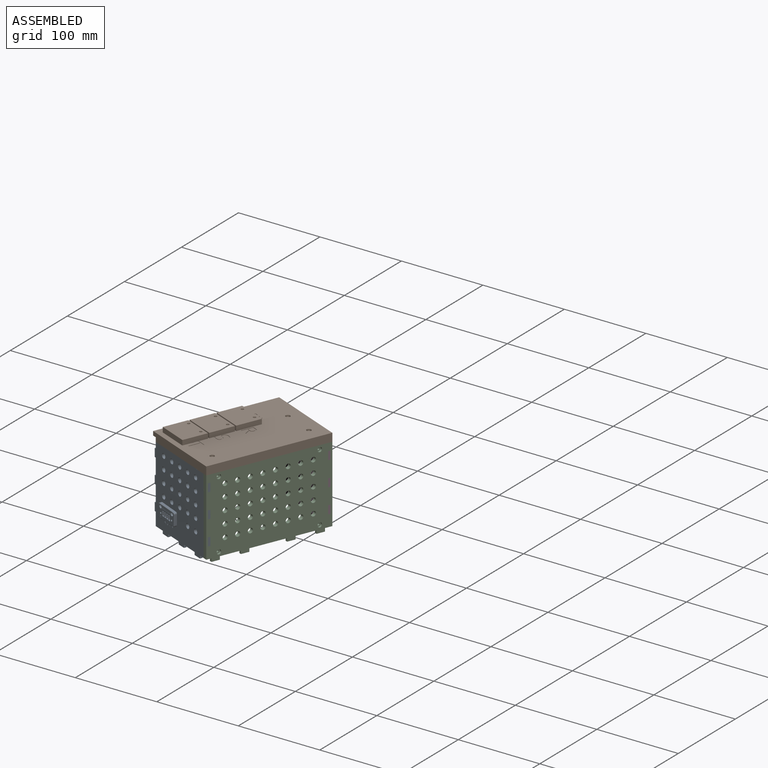
[diagram: assembled view]
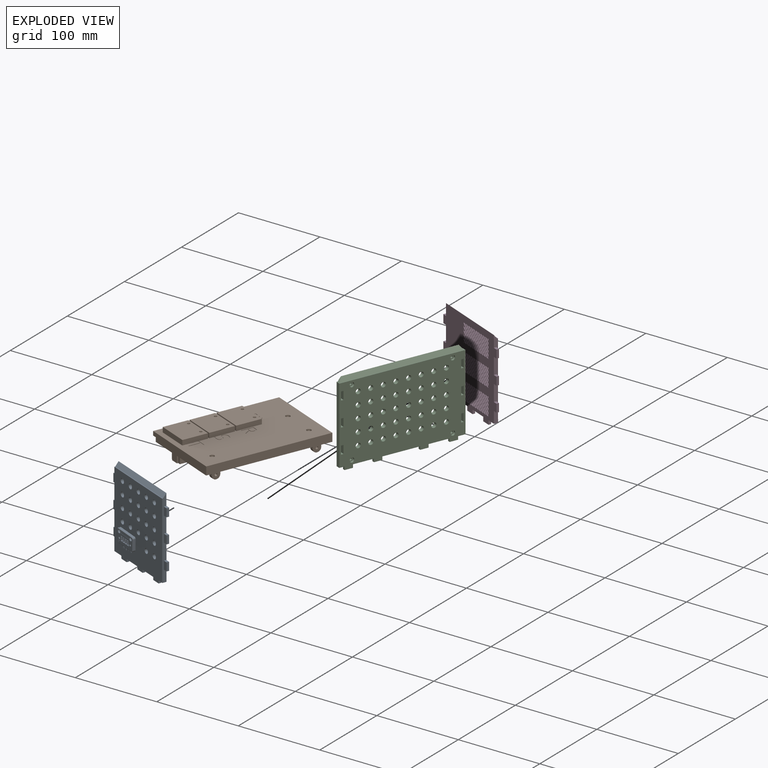
[diagram: exploded view]
GUIDED TOUR — MATED ASSEMBLY WITH SUBASSEMBLIES (Onshape document c2169f54061de33ea93a90dd, AutoMate assembly c2169f54061de33ea93a90dd_6a7d9849bef87e64bdcc8d37_483be681c56e90cc76125730_default)

This assembly has 8 component occurrences arranged in 4 top-level units: 2 individual components plus 2 subassemblies (S0, S1). The tour has two levels: first the top level, where each subassembly is treated as one rigid unit; then each subassembly is toured internally in its own section (nesting deeper than one subassembly level is flattened into its subassembly's section).

Components are labeled P0..P7 across the whole record; subassembly units are labeled S0..S1. A mate is a constraint between two units; its type names the relative motion it leaves free:
  PLANAR — leaves sliding in the plane through the listed point (normal = the listed direction) and rotation about that normal free.
Axis/direction vectors are unit vectors and 'through' points are millimeter coordinates, both in the assembly's world frame.

TOP-LEVEL MATES (between units; each subassembly's internal mates are listed in its own section)
  1. PLANAR "Planar 3": S0 <-> S1, direction (-0.302, -0.720, 0.625) through (-228.48, -171.13, 92.83) mm
  2. PLANAR "Planar 2": P4 <-> S1, direction (0.301, 0.720, 0.625) through (-172.90, -38.29, 92.87) mm
  3. PLANAR "Planar 1": P3 <-> S1, direction (0.720, -0.301, 0.625) through (-117.67, -139.45, 95.41) mm

TOP-LEVEL ASSEMBLY ORDER
  1. S1 — the base component [order verified]
  2. S0 [order verified]
  3. P3 [order verified]
  4. P4 [order verified]
(P3, P4 verified with a relaxed clearance tolerance: the source model stores slight part interference there.)
Order-tag legend:
  [order verified] — this step's position reverses a verified removal order: the component was checked to insert without passing through the ones already placed.

Of the 8 component occurrences, 5 carry the full construction recipe — the FeatureScript program that regenerates the part's solid from scratch; the rest are supplied as boundary geometry only. Each toured unit is shown spotlighted twice — assembled, then exploded with a leader line back to its socket (green = recipe-attached component, orange = geometry-only, blue = subassembly unit; the rest desaturated gray).
NOTE — this tour is split across 2 documents so each fits a 32k-token context. This is document 1: the component sections continue in the remaining 1 document, each repeating the header above.
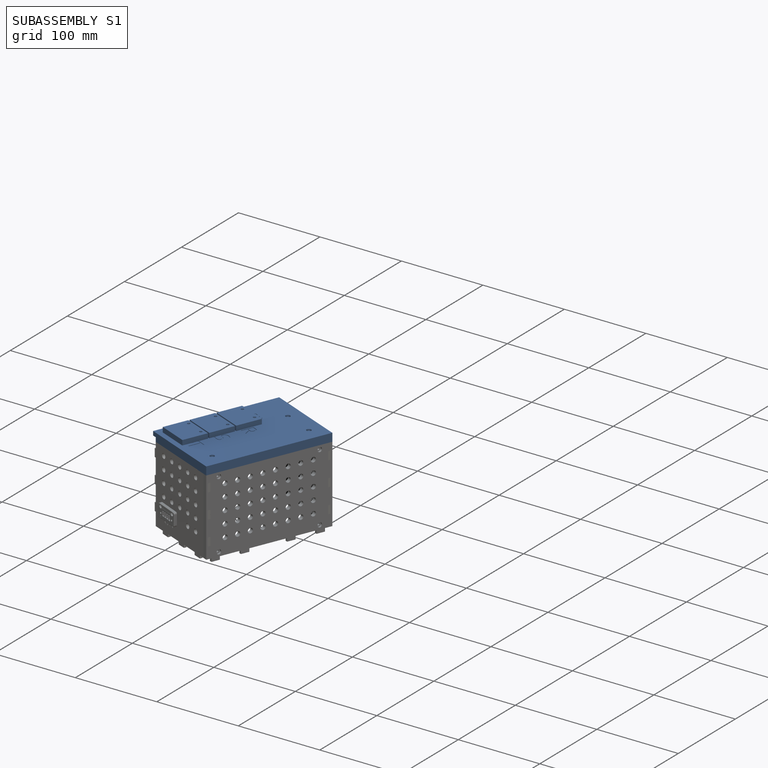
[diagram: subassembly S1 — assembled]
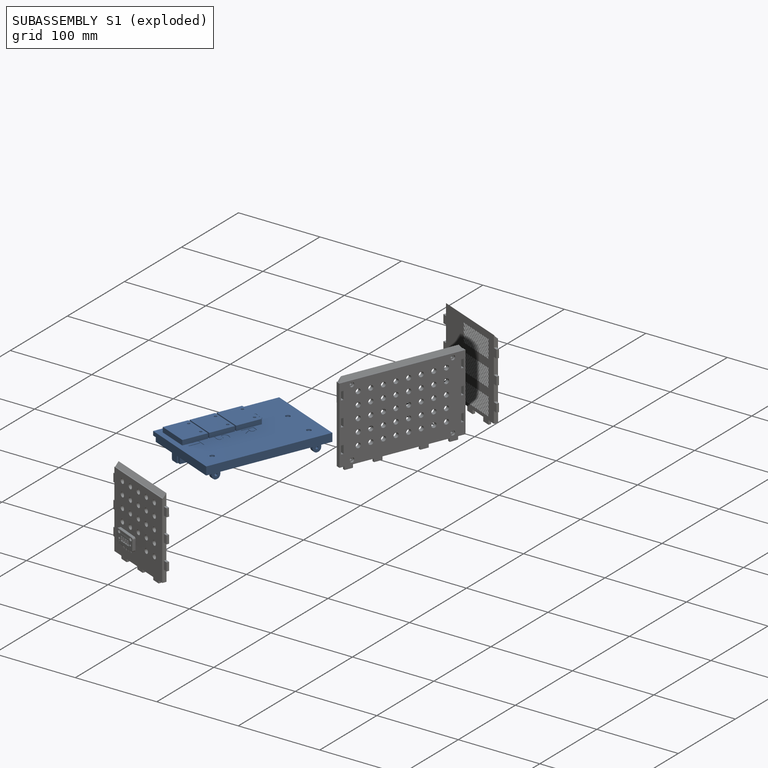
[diagram: subassembly S1 — exploded]
SUBASSEMBLY S1 — 4 components (P1, P2, P6, P7), of which 4 recipe-attached; toured below.
Held by: PLANAR mate "Planar 3" to S0; PLANAR mate "Planar 2" to P4; PLANAR mate "Planar 1" to P3.
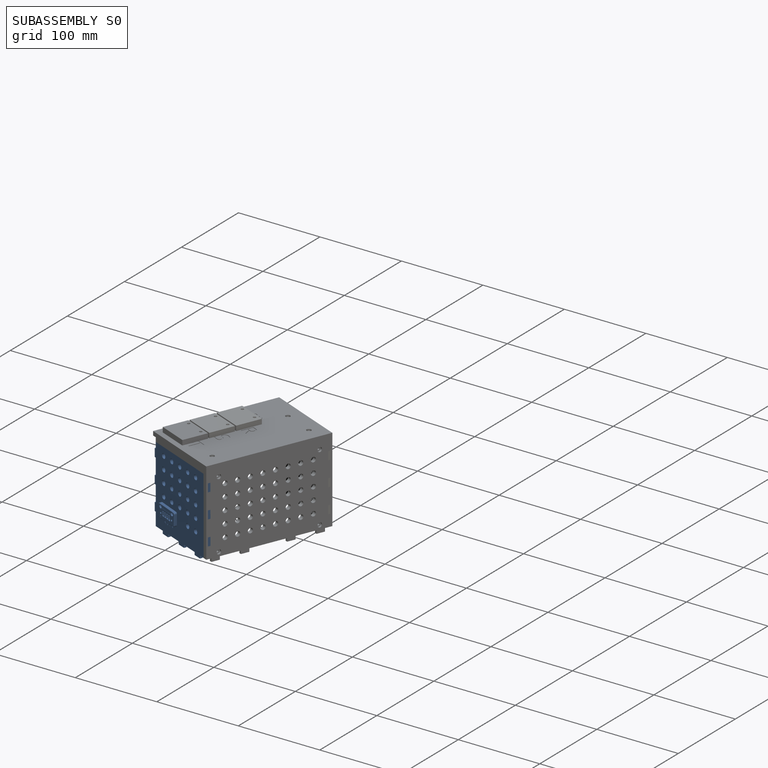
[diagram: subassembly S0 — assembled]
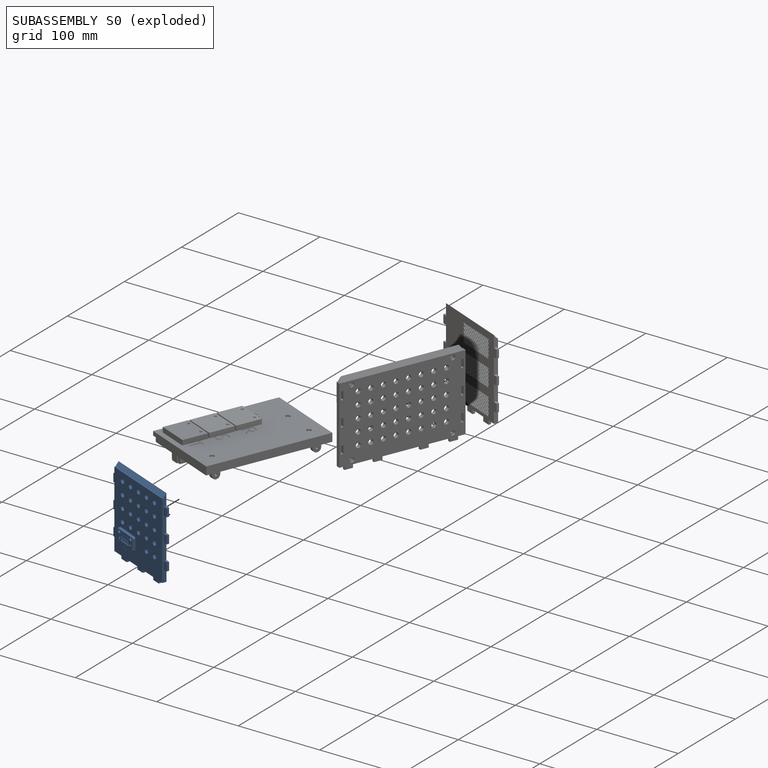
[diagram: subassembly S0 — exploded]
SUBASSEMBLY S0 — 2 components (P0, P5), of which 0 recipe-attached; toured below.
Held by: PLANAR mate "Planar 3" to S1.
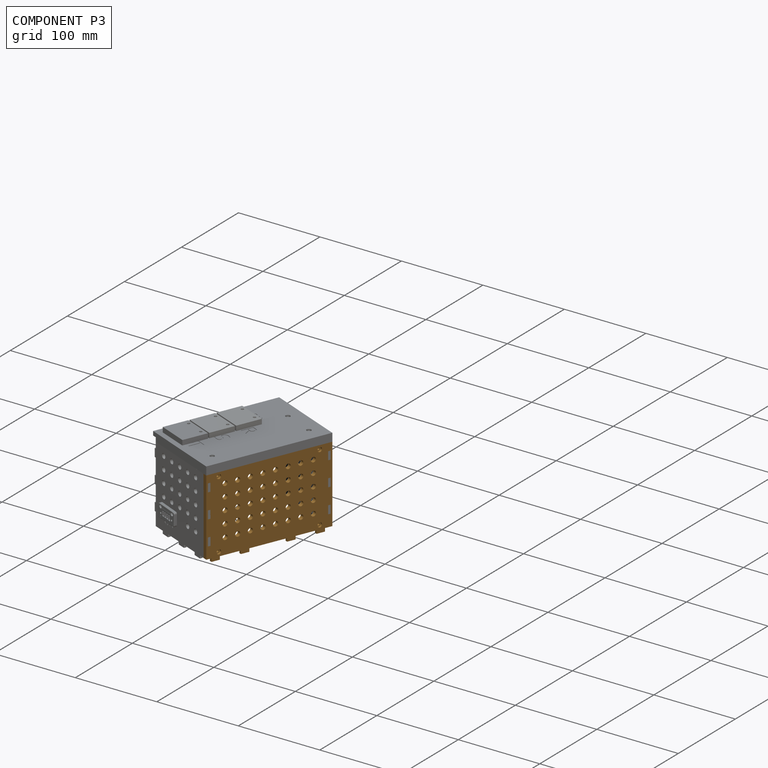
[diagram: component P3 — assembled]
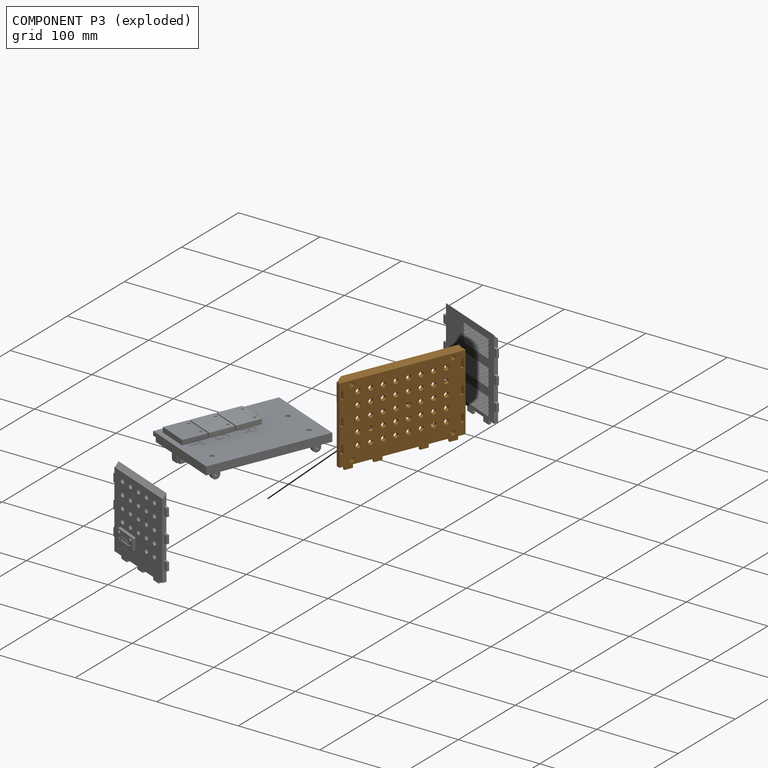
[diagram: component P3 — exploded]
COMPONENT P3 — geometry summary (no construction recipe available for this part):
  bounding box: 150.0 x 103.5 x 5.0 mm
  B-rep topology: 1 solid, 101 faces, 570 edges
  volume: 65315 mm^3 (84% of its bounding box)
  symmetry: mirror-symmetric across its x mid-plane
Held by: PLANAR mate "Planar 1" to P1.
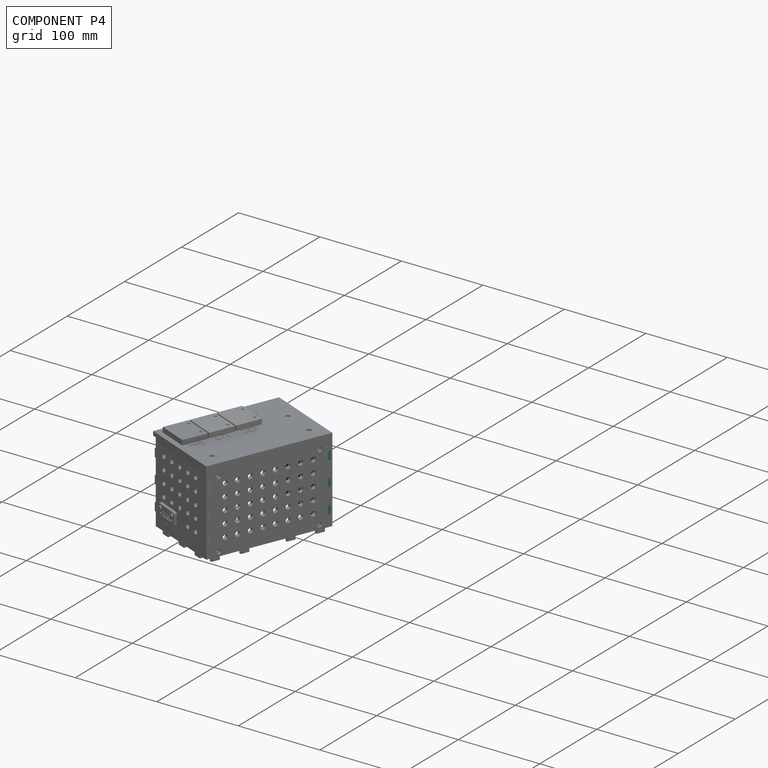
[diagram: component P4 — assembled]
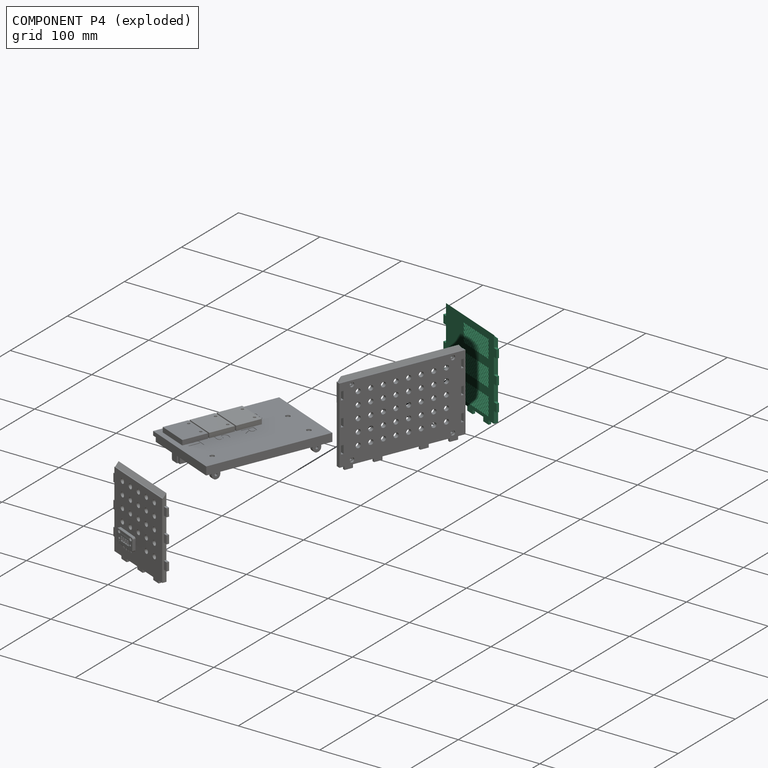
[diagram: component P4 — exploded]
COMPONENT P4 — recipe-attached (CADFS 00138785, mesh-verified: the recipe's output STEP matches this component's geometry to below the mesh-comparison resolution (tessellation chordal tolerance ~0.216 mm)).
Held by: PLANAR mate "Planar 2" to P1.
Construction recipe (FeatureScript — the CAD program that rebuilds this solid; sketch coordinates are in the units given by the * unit suffixes, e.g. mm):

FeatureScript 1511;
import(path : "onshape/std/geometry.fs", version : "1511.0");
import(path : "onshape/std/common.fs", version : "1511.0");
const mm = millimeter;
const VERTEX = EntityType.VERTEX;
const EDGE = EntityType.EDGE;
const FACE = EntityType.FACE;
const BODY = EntityType.BODY;
function v(x, y){return vector(x, y);}
function OD(order){return orderDisambiguation(order);}
function OSD(set){return originalSetDisambiguation(set);}
function TD(topology){return topologyDisambiguation(topology);}
function TDD(query){return trueDependencyDisambiguation(query);}
function sQuery(a, b, c) {return sketchEntityQuery(a, b, c);}

annotation { "Feature Type Name" : "Feature", "Feature Type Description" : "" }
export const myFeature = defineFeature(function(context is Context, id is Id, definition is map)
    precondition{}
    {
        {
            var Q0;
            Q0=qCreatedBy(makeId("Top.planeOp"),FACE);
            var sketch = newSketch(context, id + "F0", { "sketchPlane" : qUnion([Q0])});
            skLineSegment(sketch, "E0.bottom", {"start": v(45, 49.25) * mm, "end": v(-45, 49.25) * mm});
            skLineSegment(sketch, "E0.top", {"start": v(45, -49.25) * mm, "end": v(-45, -49.25) * mm});
            skLineSegment(sketch, "E0.left", {"start": v(45, 49.25) * mm, "end": v(45, -49.25) * mm});
            skLineSegment(sketch, "E0.right", {"start": v(-45, 49.25) * mm, "end": v(-45, -49.25) * mm});
            skPoint(sketch, "E0.middle", {"position": v(0, 0) * mm});
            skSolve(sketch);
        }
        {
            var Q0;
            Q0 = qSketchRegion(id + "F0", true);
            extrude(context, id + "F1", {"entities" : qUnion([Q0]), "depth" : 5 * mm});
        }
        {
            var Q0;
            Q0=makeQuery(id+"F1.opExtrude","CAP_FACE",FACE,{"disambiguationData":[OSD([sQuery(id+"F0.wireOp",EDGE,"E0.bottom"),sQuery(id+"F0.wireOp",EDGE,"E0.top"),sQuery(id+"F0.wireOp",EDGE,"E0.left"),sQuery(id+"F0.wireOp",EDGE,"E0.right")])],"isStart":false});
            var sketch = newSketch(context, id + "F2", { "sketchPlane" : qUnion([Q0])});
            skLineSegment(sketch, "E1.bottom", {"start": v(-35, 40.75) * mm, "end": v(12, 40.75) * mm});
            skLineSegment(sketch, "E1.top", {"start": v(-35, 18.75) * mm, "end": v(12, 18.75) * mm});
            skLineSegment(sketch, "E1.left", {"start": v(-35, 40.75) * mm, "end": v(-35, 18.75) * mm});
            skLineSegment(sketch, "E1.right", {"start": v(12, 40.75) * mm, "end": v(12, 18.75) * mm});
            skLineSegment(sketch, "E2.bottom", {"start": v(-35, 8.75) * mm, "end": v(12, 8.75) * mm});
            skLineSegment(sketch, "E2.top", {"start": v(-35, -13.25) * mm, "end": v(12, -13.25) * mm});
            skLineSegment(sketch, "E2.left", {"start": v(-35, 8.75) * mm, "end": v(-35, -13.25) * mm});
            skLineSegment(sketch, "E2.right", {"start": v(12, 8.75) * mm, "end": v(12, -13.25) * mm});
            skLineSegment(sketch, "E3.bottom", {"start": v(-35, -23.25) * mm, "end": v(12, -23.25) * mm});
            skLineSegment(sketch, "E3.top", {"start": v(-35, -45.25) * mm, "end": v(12, -45.25) * mm});
            skLineSegment(sketch, "E3.left", {"start": v(-35, -23.25) * mm, "end": v(-35, -45.25) * mm});
            skLineSegment(sketch, "E3.right", {"start": v(12, -23.25) * mm, "end": v(12, -45.25) * mm});
            skSolve(sketch);
        }
        {
            var Q0;
            Q0=makeQuery(id+"F1.opExtrude","SWEPT_FACE",FACE,{"disambiguationData":[OSD([sQuery(id+"F0.wireOp",EDGE,"E0.right")])]});
            var sketch = newSketch(context, id + "F3", { "sketchPlane" : qUnion([Q0])});
            skLineSegment(sketch, "E4.bottom", {"start": v(-35, 0) * mm, "end": v(-25, 0) * mm});
            skLineSegment(sketch, "E4.top", {"start": v(-35, 3) * mm, "end": v(-25, 3) * mm});
            skLineSegment(sketch, "E4.left", {"start": v(-35, 0) * mm, "end": v(-35, 3) * mm});
            skLineSegment(sketch, "E4.right", {"start": v(-25, 0) * mm, "end": v(-25, 3) * mm});
            skLineSegment(sketch, "E5.bottom", {"start": v(-5, 0) * mm, "end": v(5, 0) * mm});
            skLineSegment(sketch, "E5.top", {"start": v(-5, 3) * mm, "end": v(5, 3) * mm});
            skLineSegment(sketch, "E5.left", {"start": v(-5, 0) * mm, "end": v(-5, 3) * mm});
            skLineSegment(sketch, "E5.right", {"start": v(5, 0) * mm, "end": v(5, 3) * mm});
            skLineSegment(sketch, "E6.bottom", {"start": v(25, 0) * mm, "end": v(35, 0) * mm});
            skLineSegment(sketch, "E6.top", {"start": v(25, 3) * mm, "end": v(35, 3) * mm});
            skLineSegment(sketch, "E6.left", {"start": v(25, 0) * mm, "end": v(25, 3) * mm});
            skLineSegment(sketch, "E6.right", {"start": v(35, 0) * mm, "end": v(35, 3) * mm});
            skSolve(sketch);
        }
        {
            var Q0;
            Q0 = qSketchRegion(id + "F3", true);
            extrude(context, id + "F4", {"entities" : qUnion([Q0]), "operationType" : NewBodyOperationType.ADD, "depth" : 5 * mm});
        }
        {
            var Q0;
            Q0=makeQuery(id+"F1.opExtrude","SWEPT_FACE",FACE,{"disambiguationData":[OSD([sQuery(id+"F0.wireOp",EDGE,"E0.left")])]});
            var sketch = newSketch(context, id + "F5", { "sketchPlane" : qUnion([Q0])});
            skLineSegment(sketch, "E7.bottom", {"start": v(-35, 3) * mm, "end": v(-25, 3) * mm});
            skLineSegment(sketch, "E7.top", {"start": v(-35, 0) * mm, "end": v(-25, 0) * mm});
            skLineSegment(sketch, "E7.left", {"start": v(-35, 3) * mm, "end": v(-35, 0) * mm});
            skLineSegment(sketch, "E7.right", {"start": v(-25, 3) * mm, "end": v(-25, 0) * mm});
            skLineSegment(sketch, "E8.bottom", {"start": v(-5, 3) * mm, "end": v(5, 3) * mm});
            skLineSegment(sketch, "E8.top", {"start": v(-5, 0) * mm, "end": v(5, 0) * mm});
            skLineSegment(sketch, "E8.left", {"start": v(-5, 3) * mm, "end": v(-5, 0) * mm});
            skLineSegment(sketch, "E8.right", {"start": v(5, 3) * mm, "end": v(5, 0) * mm});
            skLineSegment(sketch, "E9.bottom", {"start": v(25, 3) * mm, "end": v(35, 3) * mm});
            skLineSegment(sketch, "E9.top", {"start": v(25, 0) * mm, "end": v(35, 0) * mm});
            skLineSegment(sketch, "E9.left", {"start": v(25, 3) * mm, "end": v(25, 0) * mm});
            skLineSegment(sketch, "E9.right", {"start": v(35, 3) * mm, "end": v(35, 0) * mm});
            skSolve(sketch);
        }
        {
            var Q0;
            Q0 = qSketchRegion(id + "F5", true);
            extrude(context, id + "F6", {"entities" : qUnion([Q0]), "operationType" : NewBodyOperationType.ADD, "depth" : 5 * mm});
        }
        {
            var Q0;
            Q0=makeQuery(id+"F1.opExtrude","SWEPT_FACE",FACE,{"disambiguationData":[OSD([sQuery(id+"F0.wireOp",EDGE,"E0.top")])]});
            var sketch = newSketch(context, id + "F7", { "sketchPlane" : qUnion([Q0])});
            skLineSegment(sketch, "E10.bottom", {"start": v(-35, 0) * mm, "end": v(-25, 0) * mm});
            skLineSegment(sketch, "E10.top", {"start": v(-35, 3) * mm, "end": v(-25, 3) * mm});
            skLineSegment(sketch, "E10.left", {"start": v(-35, 0) * mm, "end": v(-35, 3) * mm});
            skLineSegment(sketch, "E10.right", {"start": v(-25, 0) * mm, "end": v(-25, 3) * mm});
            skLineSegment(sketch, "E11.bottom", {"start": v(-5, 0) * mm, "end": v(5, 0) * mm});
            skLineSegment(sketch, "E11.top", {"start": v(-5, 3) * mm, "end": v(5, 3) * mm});
            skLineSegment(sketch, "E11.left", {"start": v(-5, 0) * mm, "end": v(-5, 3) * mm});
            skLineSegment(sketch, "E11.right", {"start": v(5, 0) * mm, "end": v(5, 3) * mm});
            skLineSegment(sketch, "E12.bottom", {"start": v(25, 0) * mm, "end": v(35, 0) * mm});
            skLineSegment(sketch, "E12.top", {"start": v(25, 3) * mm, "end": v(35, 3) * mm});
            skLineSegment(sketch, "E12.left", {"start": v(25, 0) * mm, "end": v(25, 3) * mm});
            skLineSegment(sketch, "E12.right", {"start": v(35, 0) * mm, "end": v(35, 3) * mm});
            skSolve(sketch);
        }
        {
            var Q0;
            Q0 = qSketchRegion(id + "F7", true);
            extrude(context, id + "F8", {"entities" : qUnion([Q0]), "operationType" : NewBodyOperationType.ADD, "depth" : 5 * mm});
        }
        {
            var Q0;
            Q0=makeQuery(id+"F2.imprint","IMPRINT",FACE,{"disambiguationData":[TD([[makeQuery(id+"F2.imprint","IMPRINT",EDGE,{"derivedFrom":sQuery(id+"F2.wireOp",EDGE,"E1.bottom")}),-1.0]])]});
            var sketch = newSketch(context, id + "F9", { "sketchPlane" : qUnion([Q0])});
            skLineSegment(sketch, "E13", {"start": v(-35, 18.75) * mm, "end": v(-13, 40.75) * mm});
            skLineSegment(sketch, "E14", {"start": v(-13, 40.75) * mm, "end": v(-10, 40.75) * mm});
            skLineSegment(sketch, "E15", {"start": v(-10, 40.75) * mm, "end": v(-32, 18.75) * mm});
            skLineSegment(sketch, "E16", {"start": v(-32, 18.75) * mm, "end": v(-35, 18.75) * mm});
            skLineSegment(sketch, "E17.1.0.0", {"start": v(-27.5, 18.75) * mm, "end": v(-30.5, 18.75) * mm});
            skLineSegment(sketch, "E17.1.0.1", {"start": v(-5.5, 40.75) * mm, "end": v(-27.5, 18.75) * mm});
            skLineSegment(sketch, "E17.1.0.2", {"start": v(-8.5, 40.75) * mm, "end": v(-5.5, 40.75) * mm});
            skLineSegment(sketch, "E17.1.0.3", {"start": v(-30.5, 18.75) * mm, "end": v(-8.5, 40.75) * mm});
            skLineSegment(sketch, "E17.2.0.0", {"start": v(-23, 18.75) * mm, "end": v(-26, 18.75) * mm});
            skLineSegment(sketch, "E17.2.0.1", {"start": v(-1, 40.75) * mm, "end": v(-23, 18.75) * mm});
            skLineSegment(sketch, "E17.2.0.2", {"start": v(-4, 40.75) * mm, "end": v(-1, 40.75) * mm});
            skLineSegment(sketch, "E17.2.0.3", {"start": v(-26, 18.75) * mm, "end": v(-4, 40.75) * mm});
            skLineSegment(sketch, "E17.3.0.0", {"start": v(-18.5, 18.75) * mm, "end": v(-21.5, 18.75) * mm});
            skLineSegment(sketch, "E17.3.0.1", {"start": v(3.5, 40.75) * mm, "end": v(-18.5, 18.75) * mm});
            skLineSegment(sketch, "E17.3.0.2", {"start": v(0.5, 40.75) * mm, "end": v(3.5, 40.75) * mm});
            skLineSegment(sketch, "E17.3.0.3", {"start": v(-21.5, 18.75) * mm, "end": v(0.5, 40.75) * mm});
            skLineSegment(sketch, "E17.4.0.0", {"start": v(-14, 18.75) * mm, "end": v(-17, 18.75) * mm});
            skLineSegment(sketch, "E17.4.0.1", {"start": v(8, 40.75) * mm, "end": v(-14, 18.75) * mm});
            skLineSegment(sketch, "E17.4.0.2", {"start": v(5, 40.75) * mm, "end": v(8, 40.75) * mm});
            skLineSegment(sketch, "E17.4.0.3", {"start": v(-17, 18.75) * mm, "end": v(5, 40.75) * mm});
            skLineSegment(sketch, "E17.5.0.0", {"start": v(-9.5, 18.75) * mm, "end": v(-12.5, 18.75) * mm});
            skLineSegment(sketch, "E17.5.0.1", {"start": v(12, 40.25) * mm, "end": v(-9.5, 18.75) * mm});
            skLineSegment(sketch, "E17.5.0.2", {"start": v(9.5, 40.75) * mm, "end": v(12, 40.75) * mm});
            skLineSegment(sketch, "E17.5.0.3", {"start": v(-12.5, 18.75) * mm, "end": v(9.5, 40.75) * mm});
            skLineSegment(sketch, "E17.6.0.0", {"start": v(-5, 18.75) * mm, "end": v(-8, 18.75) * mm});
            skLineSegment(sketch, "E17.6.0.1", {"start": v(12, 35.75) * mm, "end": v(-5, 18.75) * mm});
            skLineSegment(sketch, "E17.6.0.3", {"start": v(-8, 18.75) * mm, "end": v(12, 38.75) * mm});
            skLineSegment(sketch, "E17.7.0.0", {"start": v(-0.5, 18.75) * mm, "end": v(-3.5, 18.75) * mm});
            skLineSegment(sketch, "E17.7.0.1", {"start": v(12, 31.25) * mm, "end": v(-0.5, 18.75) * mm});
            skLineSegment(sketch, "E17.7.0.3", {"start": v(-3.5, 18.75) * mm, "end": v(12, 34.25) * mm});
            skLineSegment(sketch, "E17.8.0.0", {"start": v(4, 18.75) * mm, "end": v(1, 18.75) * mm});
            skLineSegment(sketch, "E17.8.0.1", {"start": v(12, 26.75) * mm, "end": v(4, 18.75) * mm});
            skLineSegment(sketch, "E17.8.0.3", {"start": v(1, 18.75) * mm, "end": v(12, 29.75) * mm});
            skLineSegment(sketch, "E17.9.0.0", {"start": v(8.5, 18.75) * mm, "end": v(5.5, 18.75) * mm});
            skLineSegment(sketch, "E17.9.0.1", {"start": v(12, 22.25) * mm, "end": v(8.5, 18.75) * mm});
            skLineSegment(sketch, "E17.9.0.3", {"start": v(5.5, 18.75) * mm, "end": v(12, 25.25) * mm});
            skLineSegment(sketch, "E17.10.0.0", {"start": v(12, 18.75) * mm, "end": v(10, 18.75) * mm});
            skLineSegment(sketch, "E17.10.0.3", {"start": v(10, 18.75) * mm, "end": v(12, 20.75) * mm});
            skLineSegment(sketch, "E17.direction1", {"start": v(-35, 18.75) * mm, "end": v(-30.5, 18.75) * mm, "construction": true});
            skLineSegment(sketch, "E18.left", {"start": v(-35, 20.25) * mm, "end": v(-35, 23.25) * mm});
            skLineSegment(sketch, "E18.right", {"start": v(12, 18.75) * mm, "end": v(12, 20.75) * mm});
            skLineSegment(sketch, "E19.1.0.0", {"start": v(-17.5, 40.75) * mm, "end": v(-14.5, 40.75) * mm});
            skLineSegment(sketch, "E19.1.0.1", {"start": v(-14.5, 40.75) * mm, "end": v(-35, 20.25) * mm});
            skLineSegment(sketch, "E19.1.0.2", {"start": v(-35, 23.25) * mm, "end": v(-17.5, 40.75) * mm});
            skLineSegment(sketch, "E19.2.0.0", {"start": v(-22, 40.75) * mm, "end": v(-19, 40.75) * mm});
            skLineSegment(sketch, "E19.2.0.1", {"start": v(-19, 40.75) * mm, "end": v(-35, 24.75) * mm});
            skLineSegment(sketch, "E19.2.0.2", {"start": v(-35, 27.75) * mm, "end": v(-22, 40.75) * mm});
            skLineSegment(sketch, "E19.3.0.0", {"start": v(-26.5, 40.75) * mm, "end": v(-23.5, 40.75) * mm});
            skLineSegment(sketch, "E19.3.0.1", {"start": v(-23.5, 40.75) * mm, "end": v(-35, 29.25) * mm});
            skLineSegment(sketch, "E19.3.0.2", {"start": v(-35, 32.25) * mm, "end": v(-26.5, 40.75) * mm});
            skLineSegment(sketch, "E19.4.0.0", {"start": v(-31, 40.75) * mm, "end": v(-28, 40.75) * mm});
            skLineSegment(sketch, "E19.4.0.1", {"start": v(-28, 40.75) * mm, "end": v(-35, 33.75) * mm});
            skLineSegment(sketch, "E19.4.0.2", {"start": v(-35, 36.75) * mm, "end": v(-31, 40.75) * mm});
            skLineSegment(sketch, "E19.5.0.0", {"start": v(-35, 40.75) * mm, "end": v(-32.5, 40.75) * mm});
            skLineSegment(sketch, "E19.5.0.1", {"start": v(-32.5, 40.75) * mm, "end": v(-35, 38.25) * mm});
            skLineSegment(sketch, "E19.direction1", {"start": v(-35, 18.75) * mm, "end": v(-39.5, 18.75) * mm, "construction": true});
            skLineSegment(sketch, "E20.trimOffspring", {"start": v(-35, 24.75) * mm, "end": v(-35, 27.75) * mm});
            skLineSegment(sketch, "E21.trimOffspring", {"start": v(-35, 29.25) * mm, "end": v(-35, 32.25) * mm});
            skLineSegment(sketch, "E22.trimOffspring", {"start": v(-35, 33.75) * mm, "end": v(-35, 36.75) * mm});
            skLineSegment(sketch, "E23.trimOffspring", {"start": v(-35, 38.25) * mm, "end": v(-35, 40.75) * mm});
            skLineSegment(sketch, "E24.trimOffspring", {"start": v(12, 40.25) * mm, "end": v(12, 40.75) * mm});
            skLineSegment(sketch, "E25.trimOffspring", {"start": v(12, 35.75) * mm, "end": v(12, 38.75) * mm});
            skLineSegment(sketch, "E26.trimOffspring", {"start": v(12, 31.25) * mm, "end": v(12, 34.25) * mm});
            skLineSegment(sketch, "E27.trimOffspring", {"start": v(12, 26.75) * mm, "end": v(12, 29.75) * mm});
            skLineSegment(sketch, "E28.trimOffspring", {"start": v(12, 22.25) * mm, "end": v(12, 25.25) * mm});
            skLineSegment(sketch, "E29.0.1.0", {"start": v(-35, -4.25) * mm, "end": v(-22, 8.75) * mm});
            skLineSegment(sketch, "E29.0.1.1", {"start": v(-3.5, -13.25) * mm, "end": v(12, 2.25) * mm});
            skLineSegment(sketch, "E29.0.1.2", {"start": v(-30.5, -13.25) * mm, "end": v(-8.5, 8.75) * mm});
            skLineSegment(sketch, "E29.0.1.3", {"start": v(-17, -13.25) * mm, "end": v(5, 8.75) * mm});
            skLineSegment(sketch, "E29.0.1.4", {"start": v(-23.5, 8.75) * mm, "end": v(-35, -2.75) * mm});
            skLineSegment(sketch, "E29.0.1.5", {"start": v(12, 8.25) * mm, "end": v(-9.5, -13.25) * mm});
            skLineSegment(sketch, "E29.0.1.6", {"start": v(12, -0.75) * mm, "end": v(-0.5, -13.25) * mm});
            skLineSegment(sketch, "E29.0.1.7", {"start": v(-8, -13.25) * mm, "end": v(12, 6.75) * mm});
            skLineSegment(sketch, "E29.0.1.8", {"start": v(-14.5, 8.75) * mm, "end": v(-35, -11.75) * mm});
            skLineSegment(sketch, "E29.0.1.9", {"start": v(-26, -13.25) * mm, "end": v(-4, 8.75) * mm});
            skLineSegment(sketch, "E29.0.1.10", {"start": v(-19, 8.75) * mm, "end": v(-35, -7.25) * mm});
            skLineSegment(sketch, "E29.0.1.11", {"start": v(5.5, -13.25) * mm, "end": v(12, -6.75) * mm});
            skLineSegment(sketch, "E29.0.1.12", {"start": v(-10, 8.75) * mm, "end": v(-32, -13.25) * mm});
            skLineSegment(sketch, "E29.0.1.13", {"start": v(-35, -8.75) * mm, "end": v(-17.5, 8.75) * mm});
            skLineSegment(sketch, "E29.0.1.14", {"start": v(-1, 8.75) * mm, "end": v(-23, -13.25) * mm});
            skLineSegment(sketch, "E29.0.1.15", {"start": v(-35, 4.75) * mm, "end": v(-31, 8.75) * mm});
            skLineSegment(sketch, "E29.0.1.16", {"start": v(-35, -13.25) * mm, "end": v(-13, 8.75) * mm});
            skLineSegment(sketch, "E29.0.1.17", {"start": v(-5.5, 8.75) * mm, "end": v(-27.5, -13.25) * mm});
            skLineSegment(sketch, "E29.0.1.18", {"start": v(-28, 8.75) * mm, "end": v(-35, 1.75) * mm});
            skLineSegment(sketch, "E29.0.1.19", {"start": v(-21.5, -13.25) * mm, "end": v(0.5, 8.75) * mm});
            skLineSegment(sketch, "E29.0.1.20", {"start": v(3.5, 8.75) * mm, "end": v(-18.5, -13.25) * mm});
            skLineSegment(sketch, "E29.0.1.21", {"start": v(12, -5.25) * mm, "end": v(4, -13.25) * mm});
            skLineSegment(sketch, "E29.0.1.22", {"start": v(1, -13.25) * mm, "end": v(12, -2.25) * mm});
            skLineSegment(sketch, "E29.0.1.23", {"start": v(-12.5, -13.25) * mm, "end": v(9.5, 8.75) * mm});
            skLineSegment(sketch, "E29.0.1.24", {"start": v(-35, 0.25) * mm, "end": v(-26.5, 8.75) * mm});
            skLineSegment(sketch, "E29.0.1.25", {"start": v(8, 8.75) * mm, "end": v(-14, -13.25) * mm});
            skLineSegment(sketch, "E29.0.1.26", {"start": v(12, -9.75) * mm, "end": v(8.5, -13.25) * mm});
            skLineSegment(sketch, "E29.0.1.27", {"start": v(12, 3.75) * mm, "end": v(-5, -13.25) * mm});
            skLineSegment(sketch, "E29.0.1.28", {"start": v(-32.5, 8.75) * mm, "end": v(-35, 6.25) * mm});
            skLineSegment(sketch, "E29.0.1.29", {"start": v(-26.5, 8.75) * mm, "end": v(-23.5, 8.75) * mm});
            skLineSegment(sketch, "E29.0.1.30", {"start": v(12, -5.25) * mm, "end": v(12, -2.25) * mm});
            skLineSegment(sketch, "E29.0.1.31", {"start": v(4, -13.25) * mm, "end": v(1, -13.25) * mm});
            skLineSegment(sketch, "E29.0.1.32", {"start": v(-35, 8.75) * mm, "end": v(-32.5, 8.75) * mm});
            skLineSegment(sketch, "E29.0.1.33", {"start": v(12, -0.75) * mm, "end": v(12, 2.25) * mm});
            skLineSegment(sketch, "E29.0.1.34", {"start": v(-4, 8.75) * mm, "end": v(-1, 8.75) * mm});
            skLineSegment(sketch, "E29.0.1.35", {"start": v(-23, -13.25) * mm, "end": v(-26, -13.25) * mm});
            skLineSegment(sketch, "E29.0.1.36", {"start": v(9.5, 8.75) * mm, "end": v(12, 8.75) * mm});
            skLineSegment(sketch, "E29.0.1.37", {"start": v(-27.5, -13.25) * mm, "end": v(-30.5, -13.25) * mm});
            skLineSegment(sketch, "E29.0.1.38", {"start": v(10, -13.25) * mm, "end": v(12, -11.25) * mm});
            skLineSegment(sketch, "E29.0.1.39", {"start": v(-22, 8.75) * mm, "end": v(-19, 8.75) * mm});
            skLineSegment(sketch, "E29.0.1.40", {"start": v(-35, 1.75) * mm, "end": v(-35, 4.75) * mm});
            skLineSegment(sketch, "E29.0.1.41", {"start": v(-18.5, -13.25) * mm, "end": v(-21.5, -13.25) * mm});
            skLineSegment(sketch, "E29.0.1.42", {"start": v(-9.5, -13.25) * mm, "end": v(-12.5, -13.25) * mm});
            skLineSegment(sketch, "E29.0.1.43", {"start": v(-35, 6.25) * mm, "end": v(-35, 8.75) * mm});
            skLineSegment(sketch, "E29.0.1.44", {"start": v(-0.5, -13.25) * mm, "end": v(-3.5, -13.25) * mm});
            skLineSegment(sketch, "E29.0.1.45", {"start": v(-13, 8.75) * mm, "end": v(-10, 8.75) * mm});
            skLineSegment(sketch, "E29.0.1.46", {"start": v(12, 3.75) * mm, "end": v(12, 6.75) * mm});
            skLineSegment(sketch, "E29.0.1.47", {"start": v(-8.5, 8.75) * mm, "end": v(-5.5, 8.75) * mm});
            skLineSegment(sketch, "E29.0.1.48", {"start": v(0.5, 8.75) * mm, "end": v(3.5, 8.75) * mm});
            skLineSegment(sketch, "E29.0.1.49", {"start": v(12, -9.75) * mm, "end": v(12, -6.75) * mm});
            skLineSegment(sketch, "E29.0.1.50", {"start": v(-35, -13.25) * mm, "end": v(-30.5, -13.25) * mm, "construction": true});
            skLineSegment(sketch, "E29.0.1.51", {"start": v(-14, -13.25) * mm, "end": v(-17, -13.25) * mm});
            skLineSegment(sketch, "E29.0.1.52", {"start": v(-35, -11.75) * mm, "end": v(-35, -8.75) * mm});
            skLineSegment(sketch, "E29.0.1.53", {"start": v(8.5, -13.25) * mm, "end": v(5.5, -13.25) * mm});
            skLineSegment(sketch, "E29.0.1.54", {"start": v(12, -13.25) * mm, "end": v(12, -11.25) * mm});
            skLineSegment(sketch, "E29.0.1.55", {"start": v(-5, -13.25) * mm, "end": v(-8, -13.25) * mm});
            skLineSegment(sketch, "E29.0.1.56", {"start": v(-35, -7.25) * mm, "end": v(-35, -4.25) * mm});
            skLineSegment(sketch, "E29.0.1.57", {"start": v(-31, 8.75) * mm, "end": v(-28, 8.75) * mm});
            skLineSegment(sketch, "E29.0.1.58", {"start": v(5, 8.75) * mm, "end": v(8, 8.75) * mm});
            skLineSegment(sketch, "E29.0.1.59", {"start": v(-17.5, 8.75) * mm, "end": v(-14.5, 8.75) * mm});
            skLineSegment(sketch, "E29.0.1.60", {"start": v(-35, -2.75) * mm, "end": v(-35, 0.25) * mm});
            skLineSegment(sketch, "E29.0.1.61", {"start": v(12, -13.25) * mm, "end": v(10, -13.25) * mm});
            skLineSegment(sketch, "E29.0.1.62", {"start": v(-32, -13.25) * mm, "end": v(-35, -13.25) * mm});
            skLineSegment(sketch, "E29.0.1.63", {"start": v(12, 8.25) * mm, "end": v(12, 8.75) * mm});
            skLineSegment(sketch, "E29.0.2.0", {"start": v(-35, -36.25) * mm, "end": v(-22, -23.25) * mm});
            skLineSegment(sketch, "E29.0.2.1", {"start": v(-3.5, -45.25) * mm, "end": v(12, -29.75) * mm});
            skLineSegment(sketch, "E29.0.2.2", {"start": v(-30.5, -45.25) * mm, "end": v(-8.5, -23.25) * mm});
            skLineSegment(sketch, "E29.0.2.3", {"start": v(-17, -45.25) * mm, "end": v(5, -23.25) * mm});
            skLineSegment(sketch, "E29.0.2.4", {"start": v(-23.5, -23.25) * mm, "end": v(-35, -34.75) * mm});
            skLineSegment(sketch, "E29.0.2.5", {"start": v(12, -23.75) * mm, "end": v(-9.5, -45.25) * mm});
            skLineSegment(sketch, "E29.0.2.6", {"start": v(12, -32.75) * mm, "end": v(-0.5, -45.25) * mm});
            skLineSegment(sketch, "E29.0.2.7", {"start": v(-8, -45.25) * mm, "end": v(12, -25.25) * mm});
            skLineSegment(sketch, "E29.0.2.8", {"start": v(-14.5, -23.25) * mm, "end": v(-35, -43.75) * mm});
            skLineSegment(sketch, "E29.0.2.9", {"start": v(-26, -45.25) * mm, "end": v(-4, -23.25) * mm});
            skLineSegment(sketch, "E29.0.2.10", {"start": v(-19, -23.25) * mm, "end": v(-35, -39.25) * mm});
            skLineSegment(sketch, "E29.0.2.11", {"start": v(5.5, -45.25) * mm, "end": v(12, -38.75) * mm});
            skLineSegment(sketch, "E29.0.2.12", {"start": v(-10, -23.25) * mm, "end": v(-32, -45.25) * mm});
            skLineSegment(sketch, "E29.0.2.13", {"start": v(-35, -40.75) * mm, "end": v(-17.5, -23.25) * mm});
            skLineSegment(sketch, "E29.0.2.14", {"start": v(-1, -23.25) * mm, "end": v(-23, -45.25) * mm});
            skLineSegment(sketch, "E29.0.2.15", {"start": v(-35, -27.25) * mm, "end": v(-31, -23.25) * mm});
            skLineSegment(sketch, "E29.0.2.16", {"start": v(-35, -45.25) * mm, "end": v(-13, -23.25) * mm});
            skLineSegment(sketch, "E29.0.2.17", {"start": v(-5.5, -23.25) * mm, "end": v(-27.5, -45.25) * mm});
            skLineSegment(sketch, "E29.0.2.18", {"start": v(-28, -23.25) * mm, "end": v(-35, -30.25) * mm});
            skLineSegment(sketch, "E29.0.2.19", {"start": v(-21.5, -45.25) * mm, "end": v(0.5, -23.25) * mm});
            skLineSegment(sketch, "E29.0.2.20", {"start": v(3.5, -23.25) * mm, "end": v(-18.5, -45.25) * mm});
            skLineSegment(sketch, "E29.0.2.21", {"start": v(12, -37.25) * mm, "end": v(4, -45.25) * mm});
            skLineSegment(sketch, "E29.0.2.22", {"start": v(1, -45.25) * mm, "end": v(12, -34.25) * mm});
            skLineSegment(sketch, "E29.0.2.23", {"start": v(-12.5, -45.25) * mm, "end": v(9.5, -23.25) * mm});
            skLineSegment(sketch, "E29.0.2.24", {"start": v(-35, -31.75) * mm, "end": v(-26.5, -23.25) * mm});
            skLineSegment(sketch, "E29.0.2.25", {"start": v(8, -23.25) * mm, "end": v(-14, -45.25) * mm});
            skLineSegment(sketch, "E29.0.2.26", {"start": v(12, -41.75) * mm, "end": v(8.5, -45.25) * mm});
            skLineSegment(sketch, "E29.0.2.27", {"start": v(12, -28.25) * mm, "end": v(-5, -45.25) * mm});
            skLineSegment(sketch, "E29.0.2.28", {"start": v(-32.5, -23.25) * mm, "end": v(-35, -25.75) * mm});
            skLineSegment(sketch, "E29.0.2.29", {"start": v(-26.5, -23.25) * mm, "end": v(-23.5, -23.25) * mm});
            skLineSegment(sketch, "E29.0.2.30", {"start": v(12, -37.25) * mm, "end": v(12, -34.25) * mm});
            skLineSegment(sketch, "E29.0.2.31", {"start": v(4, -45.25) * mm, "end": v(1, -45.25) * mm});
            skLineSegment(sketch, "E29.0.2.32", {"start": v(-35, -23.25) * mm, "end": v(-32.5, -23.25) * mm});
            skLineSegment(sketch, "E29.0.2.33", {"start": v(12, -32.75) * mm, "end": v(12, -29.75) * mm});
            skLineSegment(sketch, "E29.0.2.34", {"start": v(-4, -23.25) * mm, "end": v(-1, -23.25) * mm});
            skLineSegment(sketch, "E29.0.2.35", {"start": v(-23, -45.25) * mm, "end": v(-26, -45.25) * mm});
            skLineSegment(sketch, "E29.0.2.36", {"start": v(9.5, -23.25) * mm, "end": v(12, -23.25) * mm});
            skLineSegment(sketch, "E29.0.2.37", {"start": v(-27.5, -45.25) * mm, "end": v(-30.5, -45.25) * mm});
            skLineSegment(sketch, "E29.0.2.38", {"start": v(10, -45.25) * mm, "end": v(12, -43.25) * mm});
            skLineSegment(sketch, "E29.0.2.39", {"start": v(-22, -23.25) * mm, "end": v(-19, -23.25) * mm});
            skLineSegment(sketch, "E29.0.2.40", {"start": v(-35, -30.25) * mm, "end": v(-35, -27.25) * mm});
            skLineSegment(sketch, "E29.0.2.41", {"start": v(-18.5, -45.25) * mm, "end": v(-21.5, -45.25) * mm});
            skLineSegment(sketch, "E29.0.2.42", {"start": v(-9.5, -45.25) * mm, "end": v(-12.5, -45.25) * mm});
            skLineSegment(sketch, "E29.0.2.43", {"start": v(-35, -25.75) * mm, "end": v(-35, -23.25) * mm});
            skLineSegment(sketch, "E29.0.2.44", {"start": v(-0.5, -45.25) * mm, "end": v(-3.5, -45.25) * mm});
            skLineSegment(sketch, "E29.0.2.45", {"start": v(-13, -23.25) * mm, "end": v(-10, -23.25) * mm});
            skLineSegment(sketch, "E29.0.2.46", {"start": v(12, -28.25) * mm, "end": v(12, -25.25) * mm});
            skLineSegment(sketch, "E29.0.2.47", {"start": v(-8.5, -23.25) * mm, "end": v(-5.5, -23.25) * mm});
            skLineSegment(sketch, "E29.0.2.48", {"start": v(0.5, -23.25) * mm, "end": v(3.5, -23.25) * mm});
            skLineSegment(sketch, "E29.0.2.49", {"start": v(12, -41.75) * mm, "end": v(12, -38.75) * mm});
            skLineSegment(sketch, "E29.0.2.50", {"start": v(-35, -45.25) * mm, "end": v(-30.5, -45.25) * mm, "construction": true});
            skLineSegment(sketch, "E29.0.2.51", {"start": v(-14, -45.25) * mm, "end": v(-17, -45.25) * mm});
            skLineSegment(sketch, "E29.0.2.52", {"start": v(-35, -43.75) * mm, "end": v(-35, -40.75) * mm});
            skLineSegment(sketch, "E29.0.2.53", {"start": v(8.5, -45.25) * mm, "end": v(5.5, -45.25) * mm});
            skLineSegment(sketch, "E29.0.2.54", {"start": v(12, -45.25) * mm, "end": v(12, -43.25) * mm});
            skLineSegment(sketch, "E29.0.2.55", {"start": v(-5, -45.25) * mm, "end": v(-8, -45.25) * mm});
            skLineSegment(sketch, "E29.0.2.56", {"start": v(-35, -39.25) * mm, "end": v(-35, -36.25) * mm});
            skLineSegment(sketch, "E29.0.2.57", {"start": v(-31, -23.25) * mm, "end": v(-28, -23.25) * mm});
            skLineSegment(sketch, "E29.0.2.58", {"start": v(5, -23.25) * mm, "end": v(8, -23.25) * mm});
            skLineSegment(sketch, "E29.0.2.59", {"start": v(-17.5, -23.25) * mm, "end": v(-14.5, -23.25) * mm});
            skLineSegment(sketch, "E29.0.2.60", {"start": v(-35, -34.75) * mm, "end": v(-35, -31.75) * mm});
            skLineSegment(sketch, "E29.0.2.61", {"start": v(12, -45.25) * mm, "end": v(10, -45.25) * mm});
            skLineSegment(sketch, "E29.0.2.62", {"start": v(-32, -45.25) * mm, "end": v(-35, -45.25) * mm});
            skLineSegment(sketch, "E29.0.2.63", {"start": v(12, -23.75) * mm, "end": v(12, -23.25) * mm});
            skLineSegment(sketch, "E29.direction1", {"start": v(-35, 18.75) * mm, "end": v(-10, 18.75) * mm, "construction": true});
            skLineSegment(sketch, "E29.direction2", {"start": v(-35, 18.75) * mm, "end": v(-35, -13.25) * mm, "construction": true});
            skSolve(sketch);
        }
        {
            var Q0;
            Q0 = qSketchRegion(id + "F9", true);
            extrude(context, id + "F10", {"entities" : qUnion([Q0]), "operationType" : NewBodyOperationType.REMOVE, "oppositeDirection" : true, "depth" : 25 * mm});
        }
        {
            var Q0;
            Q0=makeQuery(id+"F1.opExtrude","CAP_FACE",FACE,{"disambiguationData":[OSD([sQuery(id+"F0.wireOp",EDGE,"E0.bottom"),sQuery(id+"F0.wireOp",EDGE,"E0.top"),sQuery(id+"F0.wireOp",EDGE,"E0.left"),sQuery(id+"F0.wireOp",EDGE,"E0.right")])],"isStart":false});
            var sketch = newSketch(context, id + "F11", { "sketchPlane" : qUnion([Q0])});
            skText(sketch, "E30", { "text": "R", "fontName": "OpenSans-Regular.ttf"});
            skText(sketch, "E31", { "text": "S\n", "fontName": "OpenSans-Regular.ttf"});
            skText(sketch, "E32", { "text": "T", "fontName": "OpenSans-Regular.ttf"});
            const initialGuessF11  = {"E30": [0.013, 0.02225, 1, 0, 0.015], "E31": [0.013, -0.00975, 1, 0, 0.015], "E32": [0.013, -0.04175, 1, 0, 0.015]};
            skSetInitialGuess(sketch, initialGuessF11);
            skSolve(sketch);
        }
        {
            var Q0;
            Q0 = qSketchRegion(id + "F11", true);
            extrude(context, id + "F12", {"entities" : qUnion([Q0]), "operationType" : NewBodyOperationType.REMOVE, "oppositeDirection" : true, "depth" : 0.5 * mm});
        }
        {
            var Q0;
            {var subQ0=sQuery(id+"F0.wireOp",EDGE,"E0.right");var subQ1=sQuery(id+"F0.wireOp",EDGE,"E0.left");var subQ2=sQuery(id+"F0.wireOp",EDGE,"E0.bottom");var subQ3=sQuery(id+"F0.wireOp",EDGE,"E0.top");Q0=makeQuery(id+"F12.boolean.opBoolean","SPLIT",FACE,{"disambiguationData":[TD([makeQuery(id+"F1.opExtrude","SWEPT_FACE",FACE,{"disambiguationData":[OSD([subQ2])]})])],"derivedFrom":makeQuery(id+"F1.opExtrude","CAP_FACE",FACE,{"disambiguationData":[OSD([subQ2,subQ3,subQ1,subQ0])],"isStart":false})});}
            var sketch = newSketch(context, id + "F13", { "sketchPlane" : qUnion([Q0])});
            skCircle(sketch, "E33", {"center": v(30, -37.27) * mm, "radius": 4 * mm});
            skLineSegment(sketch, "E34", {"start": v(34, -49.25) * mm, "end": v(34, -34.45) * mm});
            skSolve(sketch);
        }
        {
            var Q0;
            Q0=makeQuery(id+"F13.imprint","IMPRINT",FACE,{"disambiguationData":[TD([[makeQuery(id+"F13.imprint","IMPRINT",EDGE,{"derivedFrom":sQuery(id+"F13.wireOp",EDGE,"E33")}),1.0]])]});
            var Q1;
            Q1=sQuery(id+"F13.wireOp",EDGE,"E34");
            revolve(context, id + "F14", {"operationType" : NewBodyOperationType.REMOVE, "entities" : qUnion([Q0]), "axis" : qUnion([Q1]), "revolveType" : RevolveType.ONE_DIRECTION, "oppositeDirection" : true, "angle" : 135 * degree});
        }
        {
            var Q0;
            {var subQ0=sQuery(id+"F0.wireOp",EDGE,"E0.right");var subQ1=sQuery(id+"F0.wireOp",EDGE,"E0.left");var subQ2=sQuery(id+"F0.wireOp",EDGE,"E0.bottom");var subQ3=sQuery(id+"F0.wireOp",EDGE,"E0.top");Q0=makeQuery(id+"F12.boolean.opBoolean","SPLIT",FACE,{"disambiguationData":[TD([makeQuery(id+"F1.opExtrude","SWEPT_FACE",FACE,{"disambiguationData":[OSD([subQ2])]})])],"derivedFrom":makeQuery(id+"F1.opExtrude","CAP_FACE",FACE,{"disambiguationData":[OSD([subQ2,subQ3,subQ1,subQ0])],"isStart":false})});}
            var sketch = newSketch(context, id + "F15", { "sketchPlane" : qUnion([Q0])});
            skLineSegment(sketch, "E35.bottom", {"start": v(36, -28.77) * mm, "end": v(40, -28.77) * mm});
            skLineSegment(sketch, "E35.top", {"start": v(36, -30.27) * mm, "end": v(40, -30.27) * mm});
            skLineSegment(sketch, "E35.left", {"start": v(36, -28.77) * mm, "end": v(36, -30.27) * mm});
            skLineSegment(sketch, "E35.right", {"start": v(40, -28.77) * mm, "end": v(40, -30.27) * mm});
            skLineSegment(sketch, "E36", {"start": v(34, -37.27) * mm, "end": v(47.47, -37.27) * mm});
            skSolve(sketch);
        }
        {
            var Q0;
            Q0=makeQuery(id+"F15.imprint","IMPRINT",FACE,{"disambiguationData":[TD([[makeQuery(id+"F15.imprint","IMPRINT",EDGE,{"derivedFrom":sQuery(id+"F15.wireOp",EDGE,"E35.bottom")}),-1.0]])]});
            var Q1;
            Q1=sQuery(id+"F15.wireOp",EDGE,"E36");
            revolve(context, id + "F16", {"operationType" : NewBodyOperationType.REMOVE, "entities" : qUnion([Q0]), "axis" : qUnion([Q1]), "revolveType" : RevolveType.FULL});
        }
        {
            var Q0;
            {var subQ0=sQuery(id+"F0.wireOp",EDGE,"E0.right");var subQ1=sQuery(id+"F0.wireOp",EDGE,"E0.left");var subQ2=sQuery(id+"F0.wireOp",EDGE,"E0.bottom");var subQ3=sQuery(id+"F0.wireOp",EDGE,"E0.top");Q0=makeQuery(id+"F12.boolean.opBoolean","SPLIT",FACE,{"disambiguationData":[TD([makeQuery(id+"F1.opExtrude","SWEPT_FACE",FACE,{"disambiguationData":[OSD([subQ2])]})])],"derivedFrom":makeQuery(id+"F1.opExtrude","CAP_FACE",FACE,{"disambiguationData":[OSD([subQ2,subQ3,subQ1,subQ0])],"isStart":false})});}
            var sketch = newSketch(context, id + "F17", { "sketchPlane" : qUnion([Q0])});
            skLineSegment(sketch, "E37.bottom", {"start": v(36, -28.77) * mm, "end": v(40, -28.77) * mm});
            skLineSegment(sketch, "E37.top", {"start": v(36, -45.77) * mm, "end": v(40, -45.77) * mm});
            skLineSegment(sketch, "E37.left", {"start": v(36, -28.77) * mm, "end": v(36, -45.77) * mm});
            skLineSegment(sketch, "E37.right", {"start": v(40, -28.77) * mm, "end": v(40, -45.77) * mm});
            skSolve(sketch);
        }
        {
            var Q0;
            Q0 = qSketchRegion(id + "F17", true);
            extrude(context, id + "F18", {"entities" : qUnion([Q0]), "operationType" : NewBodyOperationType.REMOVE, "oppositeDirection" : true, "depth" : 1 * mm});
        }
        {
            var Q0;
            Q0=makeQuery(id+"F1.opExtrude","SWEPT_FACE",FACE,{"disambiguationData":[OSD([sQuery(id+"F0.wireOp",EDGE,"E0.left")])]});
            var sketch = newSketch(context, id + "F19", { "sketchPlane" : qUnion([Q0])});
            skLineSegment(sketch, "E38", {"start": v(49.25, 0) * mm, "end": v(44.25, 0) * mm});
            skLineSegment(sketch, "E39", {"start": v(44.25, 0) * mm, "end": v(44.25, 4) * mm});
            skLineSegment(sketch, "E40", {"start": v(44.25, 4) * mm, "end": v(44.25, 5) * mm});
            skLineSegment(sketch, "E41", {"start": v(44.25, 4) * mm, "end": v(49.25, 0) * mm});
            skSolve(sketch);
        }
        {
            var Q0;
            {var subQ0=sQuery(id+"F19.wireOp",EDGE,"E40");Q0=makeQuery(id+"F19.imprint","IMPRINT",FACE,{"disambiguationData":[TD([[makeQuery(id+"F19.imprint","IMPRINT",EDGE,{"derivedFrom":subQ0}),-1.0]])]});}
            extrude(context, id + "F20", {"entities" : qUnion([Q0]), "operationType" : NewBodyOperationType.REMOVE, "oppositeDirection" : true, "depth" : 100 * mm});
        }
    });
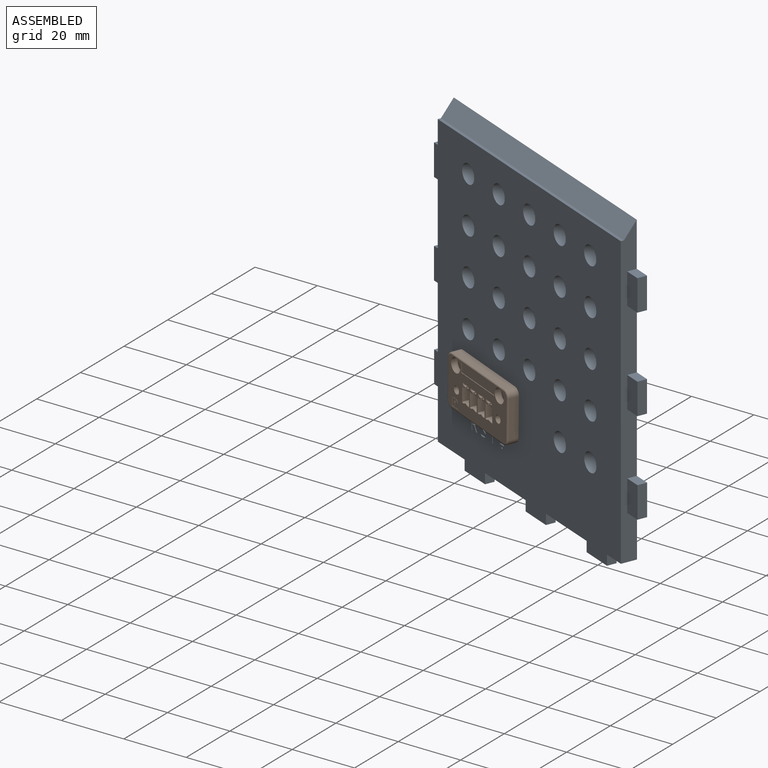
[diagram: subassembly S0 — assembled view]
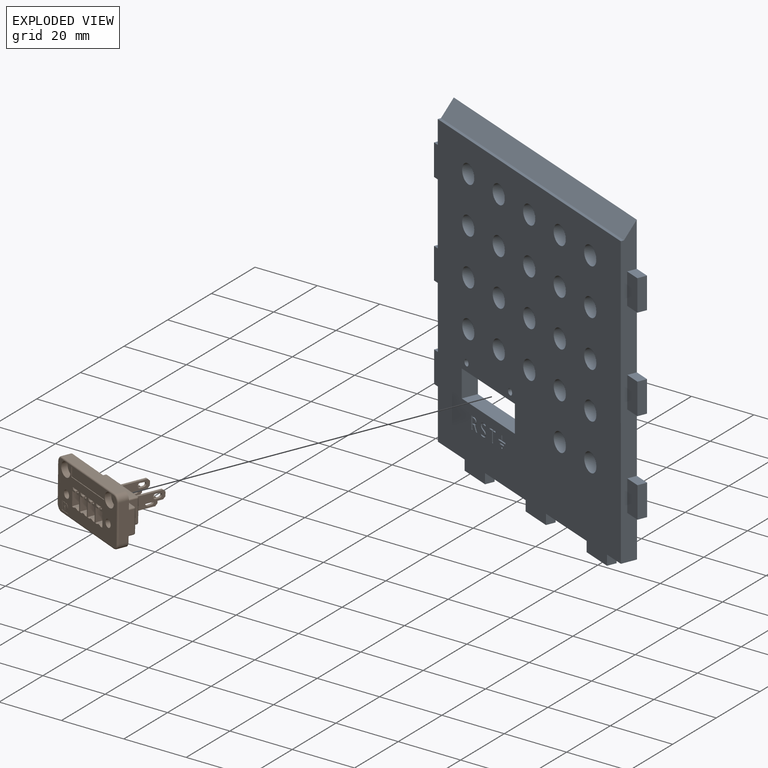
[diagram: subassembly S0 — exploded view]
SUBASSEMBLY S0 TOUR — 2 components, shown here in isolation at its own camera.

INTERNAL MATES
  1. PLANAR "Planar 1": P5 <-> P0, direction (0.386, 0.922, 0.000) through (-206.70, -183.48, 14.00) mm

ASSEMBLY ORDER (within the subassembly)
  1. P0 — the base component [order heuristic]
  2. P5 [order heuristic]
Order-tag legend:
  [order heuristic] — this assembly is geometrically interlocked (no collision-free removal order exists), so components are listed in mate-graph order; insertion feasibility is not verified.
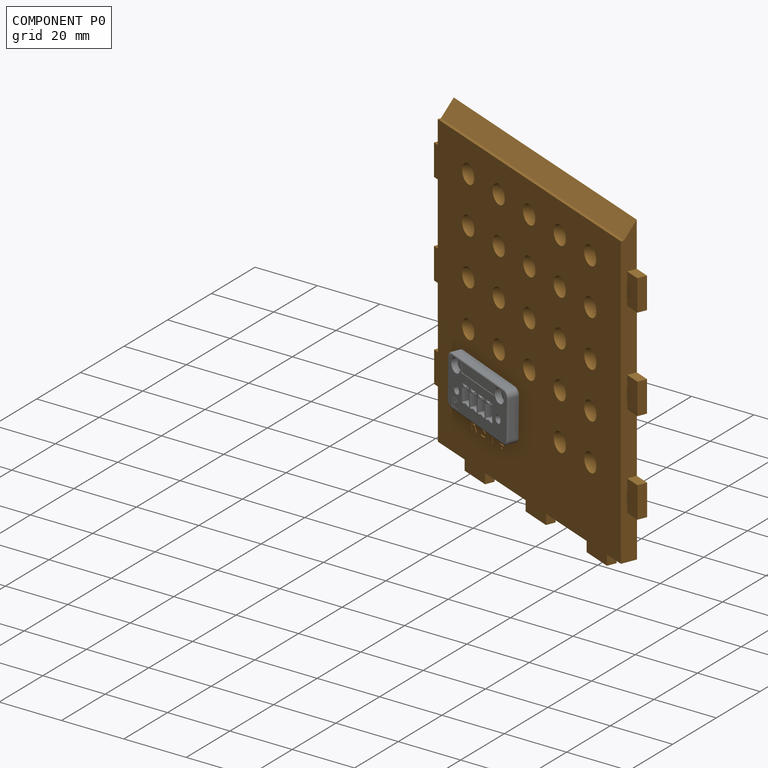
[diagram: component P0 — assembled]
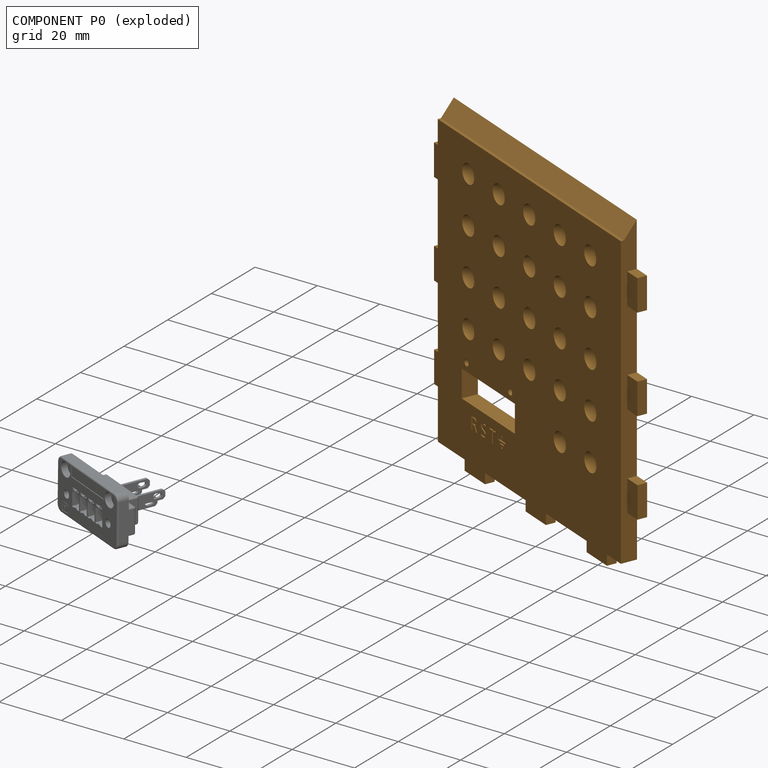
[diagram: component P0 — exploded]
COMPONENT P0 — geometry summary (no construction recipe available for this part):
  bounding box: 103.5 x 100.0 x 5.0 mm
  B-rep topology: 1 solid, 156 faces, 874 edges
  volume: 39998 mm^3 (77% of its bounding box)
Held by: PLANAR mate "Planar 1" to P5.
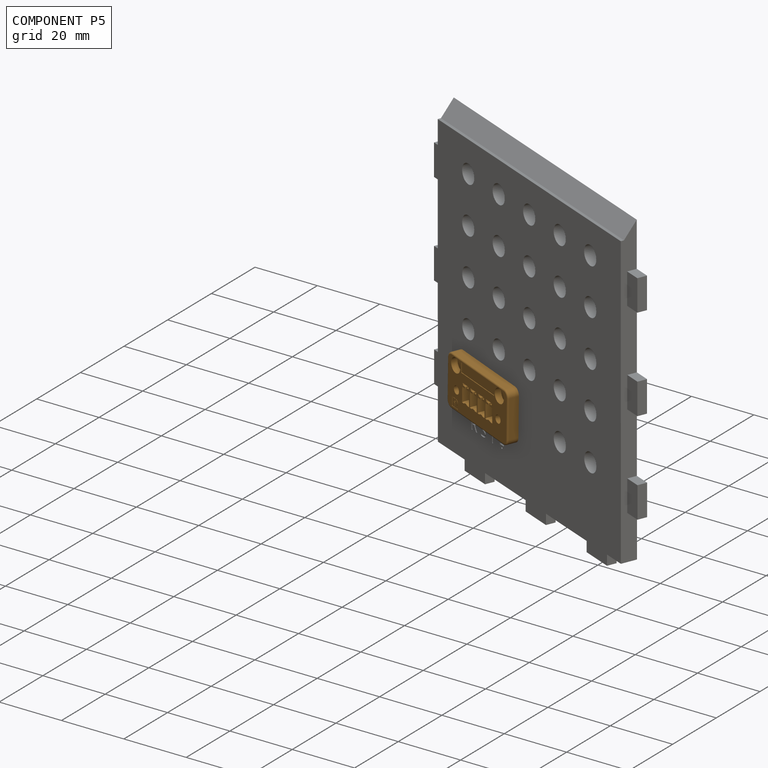
[diagram: component P5 — assembled]
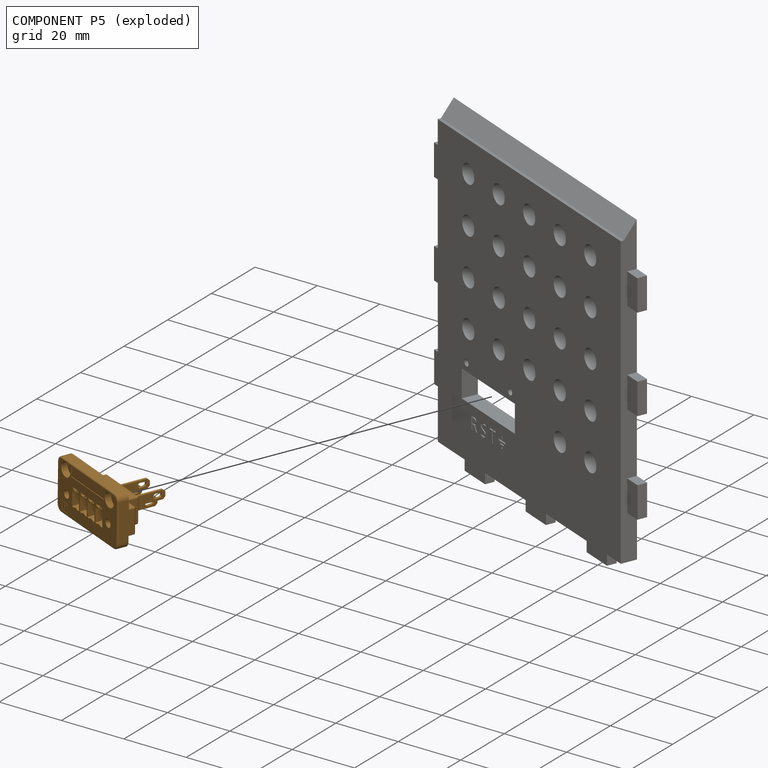
[diagram: component P5 — exploded]
COMPONENT P5 — geometry summary (no construction recipe available for this part):
  bounding box: 30.0 x 20.4 x 16.5 mm
  B-rep topology: 1 solid, 288 faces, 1438 edges
  volume: 2436 mm^3 (24% of its bounding box)
Held by: PLANAR mate "Planar 1" to P0.
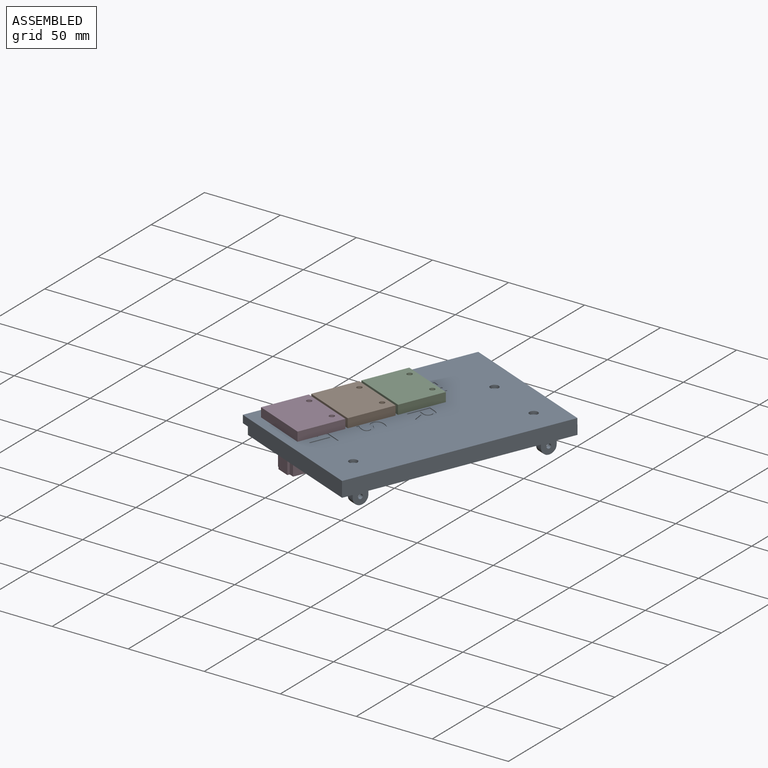
[diagram: subassembly S1 — assembled view]
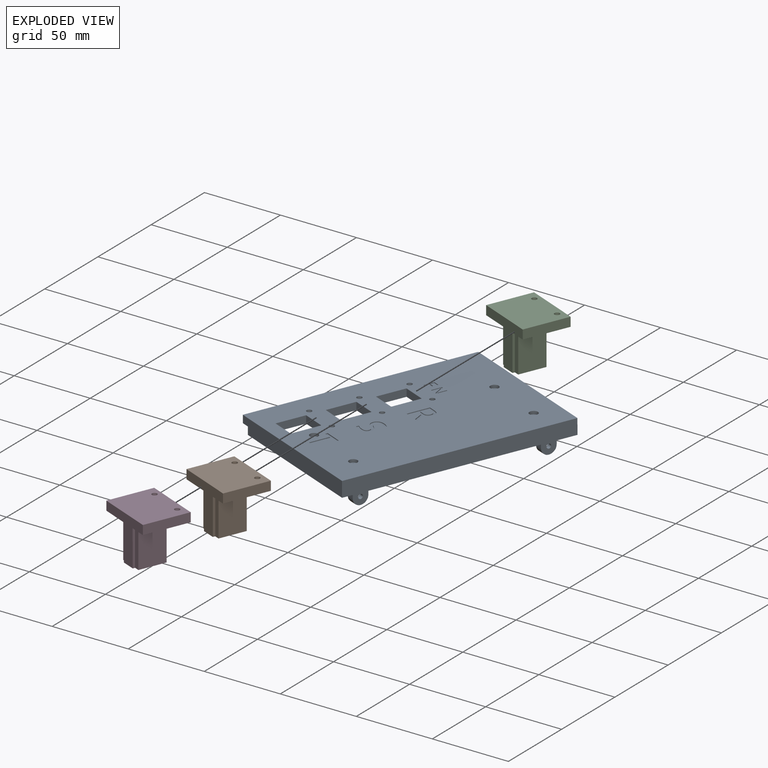
[diagram: subassembly S1 — exploded view]
SUBASSEMBLY S1 TOUR — 4 components, shown here in isolation at its own camera.

INTERNAL MATES
  1. PLANAR "Planar 3": P6 <-> P1, direction (0.001, 0.000, -1.000) through (-174.19, -96.89, 100.37) mm
  2. PLANAR "Planar 2": P2 <-> P1, direction (0.001, 0.000, -1.000) through (-186.54, -126.41, 100.36) mm
  3. PLANAR "Planar 1": P7 <-> P1, direction (0.001, 0.000, -1.000) through (-198.90, -155.93, 100.35) mm

ASSEMBLY ORDER (within the subassembly)
  1. P1 — the base component [order verified]
  2. P6 [order verified]
  3. P2 [order verified]
  4. P7 [order verified]
Order-tag legend:
  [order verified] — this step's position reverses a verified removal order: the component was checked to insert without passing through the ones already placed.
